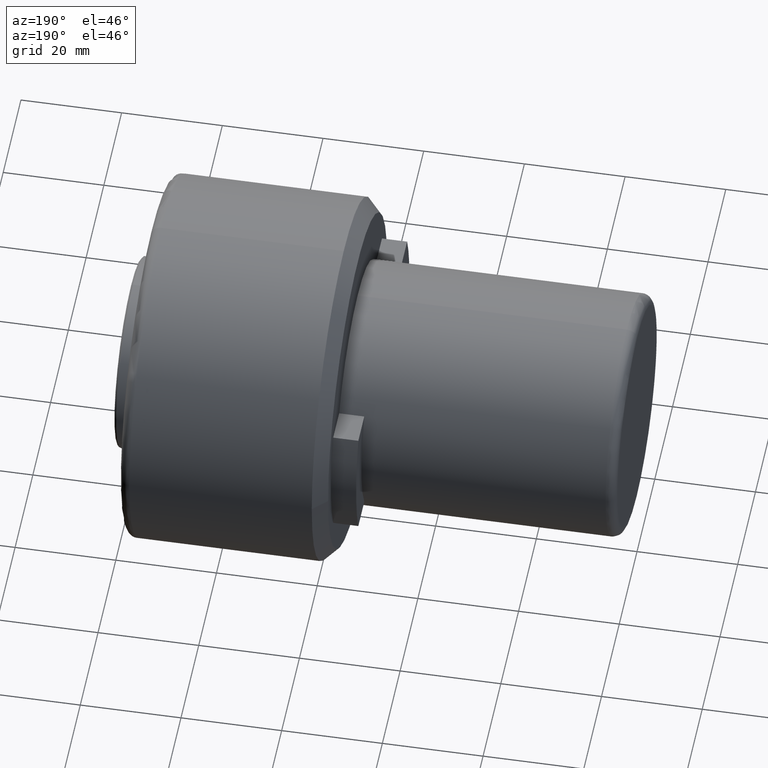
[diagram: clean part render]
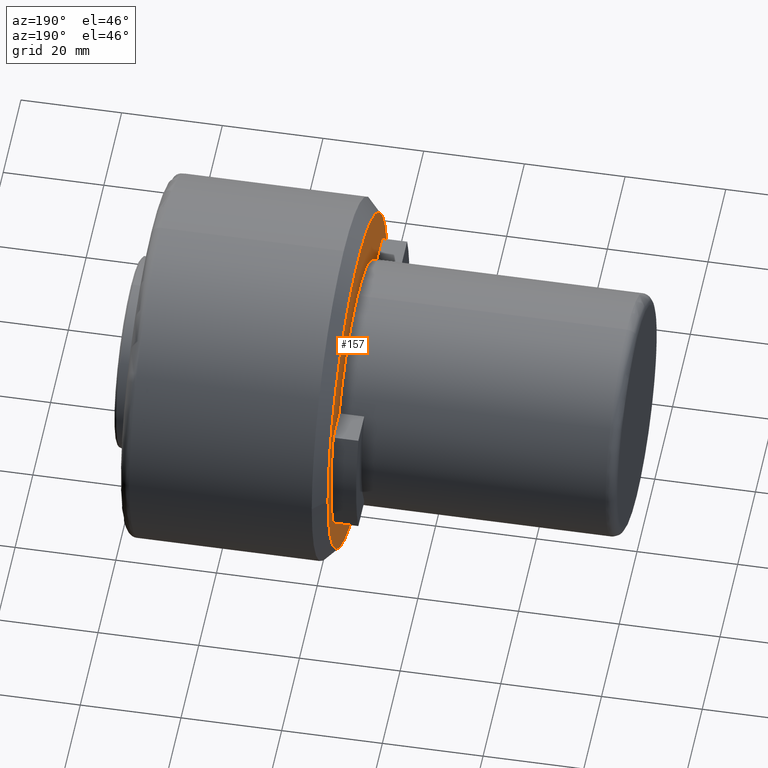
[diagram: same view with one face highlighted and labeled with its STEP entity id]
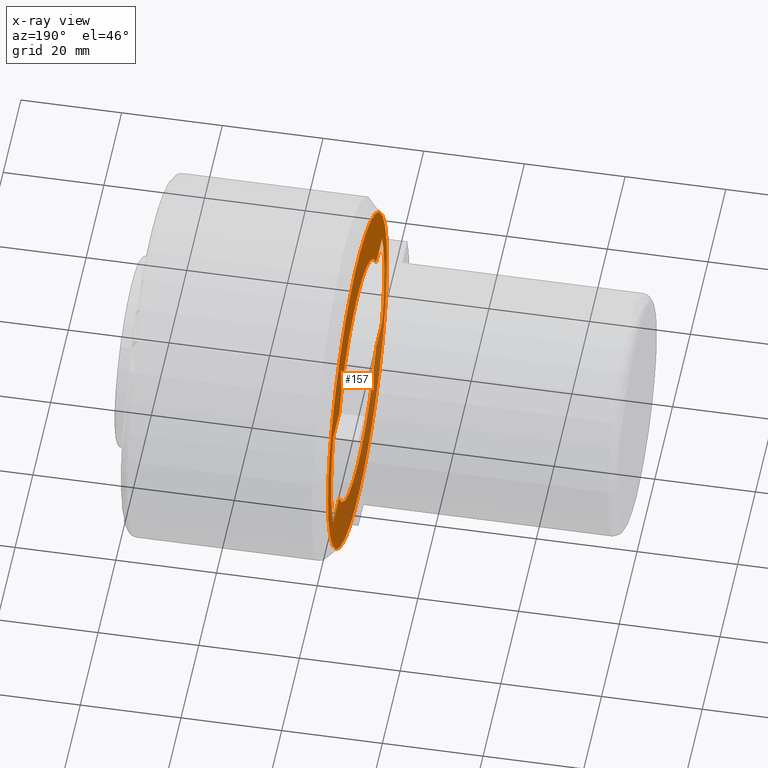
[diagram: x-ray of the same camera — body ghosted, the highlighted face saturated]
A machine part, auxiliary view. The second image highlights one B-rep face of the part: STEP entity #157.
The next image is the same camera in x-ray: the body ghosted, the highlighted face saturated — about 37% of this face is hidden behind the body in this view.
In plain terms, the highlighted planar face has unit normal (1, 0, 0).
Its self-contained STEP definition (entity closure, byte-faithful):
#1 = EDGE_LOOP ( 'NONE', ( #88, #341 ) ) ;
#4 = EDGE_CURVE ( 'NONE', #268, #694, #1024, .T. ) ;
#14 = CIRCLE ( 'NONE', #524, 30.00000000000000000 ) ;
#65 = EDGE_CURVE ( 'NONE', #708, #573, #98, .T. ) ;
#71 = DIRECTION ( 'NONE',  ( -1.000000000000000000, 0.0000000000000000000, -1.445602896647339200E-016 ) ) ;
#88 = ORIENTED_EDGE ( 'NONE', *, *, #4, .F. ) ;
#98 = CIRCLE ( 'NONE', #1003, 24.00000000000000000 ) ;
#112 = EDGE_CURVE ( 'NONE', #896, #931, #401, .T. ) ;
#129 = EDGE_CURVE ( 'NONE', #780, #206, #14, .T. ) ;
#157 = ADVANCED_FACE ( 'NONE', ( #331, #881 ), #166, .F. ) ;
#166 = PLANE ( 'NONE',  #351 ) ;
#174 = EDGE_CURVE ( 'NONE', #694, #268, #821, .T. ) ;
#182 = VECTOR ( 'NONE', #898, 1000.000000000000000 ) ;
#192 = CARTESIAN_POINT ( 'NONE',  ( 55.49999999999999300, -20.78460969007334200, 12.00000000130456000 ) ) ;
#206 = VERTEX_POINT ( 'NONE', #277 ) ;
#213 = DIRECTION ( 'NONE',  ( -1.000000000000000000, 0.0000000000000000000, -1.445602896647339200E-016 ) ) ;
#228 = CARTESIAN_POINT ( 'NONE',  ( 55.50000000000000700, 0.0000000000000000000, 5.015442563508426400E-031 ) ) ;
#229 = DIRECTION ( 'NONE',  ( 0.0000000000000000000, 1.000000000000000000, 0.0000000000000000000 ) ) ;
#264 = CARTESIAN_POINT ( 'NONE',  ( 55.50000000000000000, -33.64900000000000100, 11.99999999999999600 ) ) ;
#268 = VERTEX_POINT ( 'NONE', #1346 ) ;
#277 = CARTESIAN_POINT ( 'NONE',  ( 55.49999999999999300, 27.49545417165220900, -11.99999999787949900 ) ) ;
#278 = DIRECTION ( 'NONE',  ( -1.000000000000000000, -1.156482317317871700E-016, -0.0000000000000000000 ) ) ;
#281 = LINE ( 'NONE', #1249, #1031 ) ;
#291 = DIRECTION ( 'NONE',  ( 0.0000000000000000000, 0.0000000000000000000, 1.000000000000000000 ) ) ;
#306 = DIRECTION ( 'NONE',  ( -1.000000000000000000, -1.156482317317871700E-016, -0.0000000000000000000 ) ) ;
#313 = VERTEX_POINT ( 'NONE', #838 ) ;
#325 = AXIS2_PLACEMENT_3D ( 'NONE', #228, #972, #337 ) ;
#331 = FACE_OUTER_BOUND ( 'NONE', #1, .T. ) ;
#337 = DIRECTION ( 'NONE',  ( 0.0000000000000000000, 0.0000000000000000000, 1.000000000000000000 ) ) ;
#341 = ORIENTED_EDGE ( 'NONE', *, *, #174, .F. ) ;
#351 = AXIS2_PLACEMENT_3D ( 'NONE', #1025, #397, #1130 ) ;
#353 = ORIENTED_EDGE ( 'NONE', *, *, #892, .F. ) ;
#392 = CARTESIAN_POINT ( 'NONE',  ( 55.49999999999999300, -2.650271977186816100E-016, 0.0000000000000000000 ) ) ;
#397 = DIRECTION ( 'NONE',  ( 1.000000000000000000, 0.0000000000000000000, 0.0000000000000000000 ) ) ;
#399 = AXIS2_PLACEMENT_3D ( 'NONE', #731, #71, #828 ) ;
#401 = LINE ( 'NONE', #410, #656 ) ;
#410 = CARTESIAN_POINT ( 'NONE',  ( 55.50000000000000000, -33.64900000000000100, -11.99999999140761600 ) ) ;
#412 = CARTESIAN_POINT ( 'NONE',  ( 55.49999999999999300, 27.49545417074602900, 11.99999999783530000 ) ) ;
#433 = CARTESIAN_POINT ( 'NONE',  ( 55.50000000000000700, -20.78460969578734200, -11.99999999140761600 ) ) ;
#451 = CARTESIAN_POINT ( 'NONE',  ( 55.49999999999999300, -33.24999999999999300, 4.240339542047711600E-015 ) ) ;
#452 = CARTESIAN_POINT ( 'NONE',  ( 55.50000000000000000, 3.677383230559753400E-031, 0.0000000000000000000 ) ) ;
#458 = VECTOR ( 'NONE', #547, 1000.000000000000000 ) ;
#465 = AXIS2_PLACEMENT_3D ( 'NONE', #642, #747, #229 ) ;
#484 = ORIENTED_EDGE ( 'NONE', *, *, #662, .F. ) ;
#486 = CARTESIAN_POINT ( 'NONE',  ( 55.50000000000000700, -27.49545416980128100, 11.99999999999999800 ) ) ;
#488 = LINE ( 'NONE', #1160, #458 ) ;
#505 = DIRECTION ( 'NONE',  ( 0.0000000000000000000, 1.000000000000000000, 0.0000000000000000000 ) ) ;
#511 = CIRCLE ( 'NONE', #870, 30.00000000000000000 ) ;
#516 = AXIS2_PLACEMENT_3D ( 'NONE', #392, #1125, #505 ) ;
#524 = AXIS2_PLACEMENT_3D ( 'NONE', #452, #1179, #563 ) ;
#535 = CARTESIAN_POINT ( 'NONE',  ( 55.50000000000000700, 20.78460969332610700, 11.99999999567060100 ) ) ;
#547 = DIRECTION ( 'NONE',  ( -0.0000000000000000000, 1.000000000000000000, 0.0000000000000000000 ) ) ;
#563 = DIRECTION ( 'NONE',  ( 2.312964634635743000E-016, -1.000000000000000000, 0.0000000000000000000 ) ) ;
#566 = VERTEX_POINT ( 'NONE', #192 ) ;
#573 = VERTEX_POINT ( 'NONE', #535 ) ;
#627 = ORIENTED_EDGE ( 'NONE', *, *, #1391, .F. ) ;
#642 = CARTESIAN_POINT ( 'NONE',  ( 55.49999999999999300, -2.650271977186816100E-016, 0.0000000000000000000 ) ) ;
#656 = VECTOR ( 'NONE', #1136, 1000.000000000000000 ) ;
#660 = ORIENTED_EDGE ( 'NONE', *, *, #906, .F. ) ;
#662 = EDGE_CURVE ( 'NONE', #942, #903, #759, .T. ) ;
#694 = VERTEX_POINT ( 'NONE', #451 ) ;
#708 = VERTEX_POINT ( 'NONE', #1316 ) ;
#731 = CARTESIAN_POINT ( 'NONE',  ( 55.49999999999999300, 0.0000000000000000000, -7.523163844717393100E-031 ) ) ;
#741 = CIRCLE ( 'NONE', #1079, 24.00000000000000000 ) ;
#747 = DIRECTION ( 'NONE',  ( 1.000000000000000000, 9.637352644315590300E-017, -0.0000000000000000000 ) ) ;
#759 = CIRCLE ( 'NONE', #325, 24.00000000000000000 ) ;
#763 = CIRCLE ( 'NONE', #1246, 30.00000000000000000 ) ;
#764 = ORIENTED_EDGE ( 'NONE', *, *, #1204, .F. ) ;
#780 = VERTEX_POINT ( 'NONE', #412 ) ;
#781 = EDGE_CURVE ( 'NONE', #566, #708, #1394, .T. ) ;
#786 = ORIENTED_EDGE ( 'NONE', *, *, #65, .F. ) ;
#821 = CIRCLE ( 'NONE', #516, 33.24999999999999300 ) ;
#828 = DIRECTION ( 'NONE',  ( 0.0000000000000000000, 0.0000000000000000000, 1.000000000000000000 ) ) ;
#838 = CARTESIAN_POINT ( 'NONE',  ( 55.50000000000000700, -30.00000000000000000, 0.0000000000000000000 ) ) ;
#850 = CARTESIAN_POINT ( 'NONE',  ( 55.50000000000000700, 0.0000000000000000000, 5.015442563508426400E-031 ) ) ;
#870 = AXIS2_PLACEMENT_3D ( 'NONE', #934, #306, #1049 ) ;
#871 = ORIENTED_EDGE ( 'NONE', *, *, #781, .F. ) ;
#881 = FACE_BOUND ( 'NONE', #979, .T. ) ;
#892 = EDGE_CURVE ( 'NONE', #573, #780, #488, .T. ) ;
#896 = VERTEX_POINT ( 'NONE', #433 ) ;
#898 = DIRECTION ( 'NONE',  ( -0.0000000000000000000, 1.000000000000000000, 0.0000000000000000000 ) ) ;
#903 = VERTEX_POINT ( 'NONE', #1270 ) ;
#906 = EDGE_CURVE ( 'NONE', #903, #896, #741, .T. ) ;
#910 = CARTESIAN_POINT ( 'NONE',  ( 55.50000000000000000, -3.677383230559753800E-031, 0.0000000000000000000 ) ) ;
#916 = VERTEX_POINT ( 'NONE', #486 ) ;
#924 = DIRECTION ( 'NONE',  ( -1.000000000000000000, 0.0000000000000000000, -1.445602896647339200E-016 ) ) ;
#931 = VERTEX_POINT ( 'NONE', #1057 ) ;
#934 = CARTESIAN_POINT ( 'NONE',  ( 55.50000000000000000, -3.677383230559753800E-031, 0.0000000000000000000 ) ) ;
#942 = VERTEX_POINT ( 'NONE', #1000 ) ;
#959 = DIRECTION ( 'NONE',  ( 0.0000000000000000000, 0.0000000000000000000, 1.000000000000000000 ) ) ;
#972 = DIRECTION ( 'NONE',  ( -1.000000000000000000, 0.0000000000000000000, -1.445602896647339200E-016 ) ) ;
#975 = ORIENTED_EDGE ( 'NONE', *, *, #129, .F. ) ;
#979 = EDGE_LOOP ( 'NONE', ( #1177, #660, #484, #764, #975, #353, #786, #871, #1187, #627, #1114 ) ) ;
#1000 = CARTESIAN_POINT ( 'NONE',  ( 55.50000000000000000, 20.78460969240347500, -11.99999999726865100 ) ) ;
#1003 = AXIS2_PLACEMENT_3D ( 'NONE', #1267, #924, #291 ) ;
#1023 = DIRECTION ( 'NONE',  ( 2.312964634635743000E-016, -1.000000000000000000, 0.0000000000000000000 ) ) ;
#1024 = CIRCLE ( 'NONE', #465, 33.24999999999999300 ) ;
#1025 = CARTESIAN_POINT ( 'NONE',  ( 55.50000000000000000, -33.64900000000000100, -33.64900000000000100 ) ) ;
#1031 = VECTOR ( 'NONE', #1146, 1000.000000000000000 ) ;
#1049 = DIRECTION ( 'NONE',  ( 2.312964634635743000E-016, -1.000000000000000000, 0.0000000000000000000 ) ) ;
#1057 = CARTESIAN_POINT ( 'NONE',  ( 55.50000000000000700, -27.49545417167629000, -11.99999999570380800 ) ) ;
#1079 = AXIS2_PLACEMENT_3D ( 'NONE', #850, #213, #959 ) ;
#1114 = ORIENTED_EDGE ( 'NONE', *, *, #1186, .F. ) ;
#1125 = DIRECTION ( 'NONE',  ( 1.000000000000000000, 9.637352644315590300E-017, -0.0000000000000000000 ) ) ;
#1130 = DIRECTION ( 'NONE',  ( 0.0000000000000000000, 0.0000000000000000000, -1.000000000000000000 ) ) ;
#1136 = DIRECTION ( 'NONE',  ( 0.0000000000000000000, -1.000000000000000000, -0.0000000000000000000 ) ) ;
#1146 = DIRECTION ( 'NONE',  ( 0.0000000000000000000, -1.000000000000000000, -0.0000000000000000000 ) ) ;
#1160 = CARTESIAN_POINT ( 'NONE',  ( 55.50000000000000000, -33.64900000000000100, 11.99999999567059900 ) ) ;
#1177 = ORIENTED_EDGE ( 'NONE', *, *, #112, .F. ) ;
#1179 = DIRECTION ( 'NONE',  ( -1.000000000000000000, -1.156482317317871700E-016, -0.0000000000000000000 ) ) ;
#1186 = EDGE_CURVE ( 'NONE', #931, #313, #511, .T. ) ;
#1187 = ORIENTED_EDGE ( 'NONE', *, *, #1323, .F. ) ;
#1204 = EDGE_CURVE ( 'NONE', #206, #942, #281, .T. ) ;
#1246 = AXIS2_PLACEMENT_3D ( 'NONE', #910, #278, #1023 ) ;
#1249 = CARTESIAN_POINT ( 'NONE',  ( 55.50000000000000000, -33.64900000000000100, -11.99999999575899600 ) ) ;
#1267 = CARTESIAN_POINT ( 'NONE',  ( 55.49999999999999300, 0.0000000000000000000, -7.523163844717393100E-031 ) ) ;
#1270 = CARTESIAN_POINT ( 'NONE',  ( 55.50000000000000700, 2.939152317953647900E-015, -24.00000000000000000 ) ) ;
#1310 = LINE ( 'NONE', #264, #182 ) ;
#1316 = CARTESIAN_POINT ( 'NONE',  ( 55.49999999999999300, 0.0000000000000000000, 24.00000000000000400 ) ) ;
#1323 = EDGE_CURVE ( 'NONE', #916, #566, #1310, .T. ) ;
#1346 = CARTESIAN_POINT ( 'NONE',  ( 55.49999999999999300, 33.24999999999999300, 0.0000000000000000000 ) ) ;
#1391 = EDGE_CURVE ( 'NONE', #313, #916, #763, .T. ) ;
#1394 = CIRCLE ( 'NONE', #399, 24.00000000000000000 ) ;